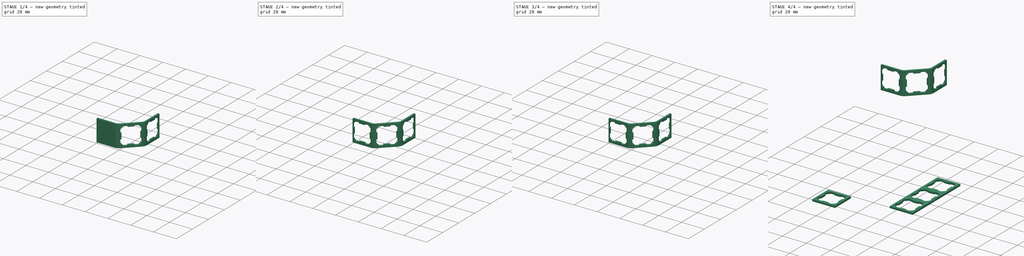
[diagram: build sequence overview — one tinted view per stage of 4, left to right]
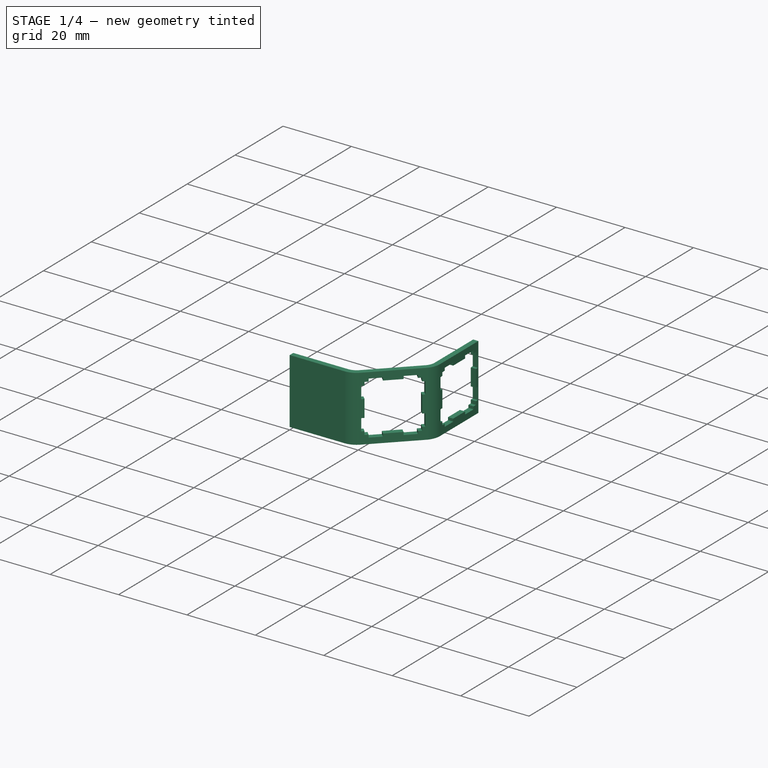
[diagram: stage 1 of 4 — iso view after this stage's code; geometry added in this stage tinted green]
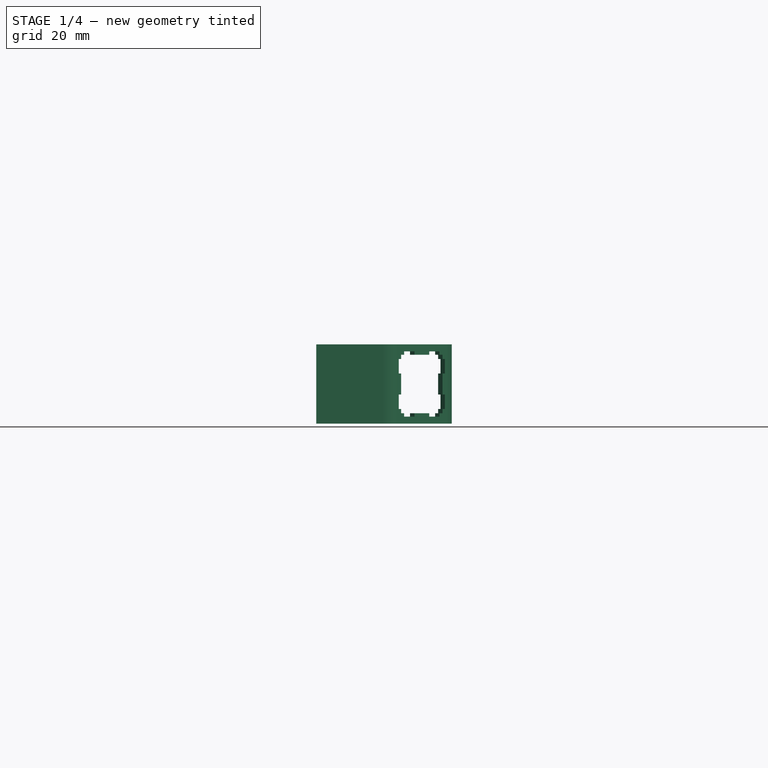
[diagram: stage 1 of 4 — front view after this stage's code; geometry added in this stage tinted green]
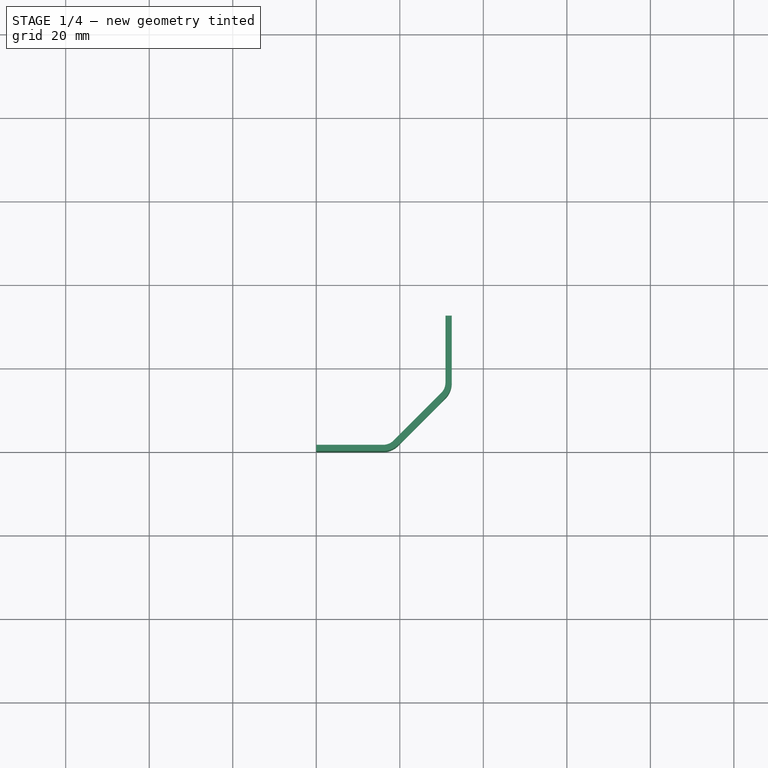
[diagram: stage 1 of 4 — top view after this stage's code; geometry added in this stage tinted green]
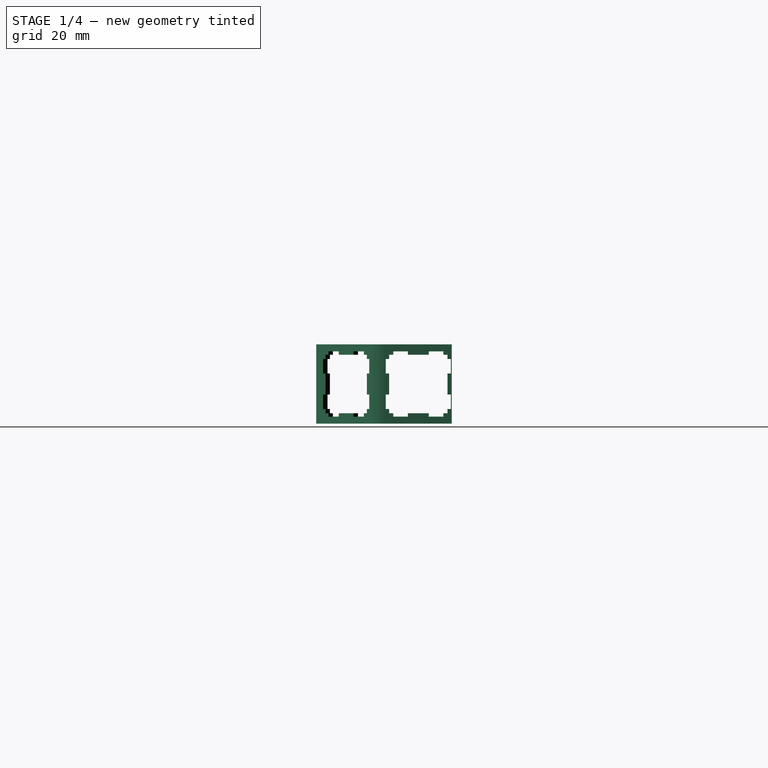
[diagram: stage 1 of 4 — right view after this stage's code; geometry added in this stage tinted green]
FCSTD DOCUMENT
Label: tryboard_4
objects: Part::FeaturePython×6, Sketcher::SketchObject×5, PartDesign::Pocket×4, PartDesign::Pad×1
note: 21 computed .brp shape members not serialized (recipe doc carries the construction recipe); baked Part::Feature solids carry a one-line shape summary decoded from their .brp

FEATURE [Sketcher::SketchObject] Sketch
  sketch-geometry (44):
    g0: LineSegment StartX=0 StartY=0 StartZ=0 EndX=16 EndY=0 EndZ=0
    g1: LineSegment [constr] StartX=16 StartY=0 StartZ=0 EndX=16 EndY=1.5 EndZ=0
    g2: LineSegment StartX=16 StartY=1.5 StartZ=0 EndX=0 EndY=1.5 EndZ=0
    g3: LineSegment StartX=0 StartY=1.5 StartZ=0 EndX=0 EndY=0 EndZ=0
    g4: LineSegment [constr] StartX=16 StartY=0 StartZ=0 EndX=17.5 EndY=0 EndZ=0
    g5: LineSegment [constr] StartX=17.5 StartY=0 StartZ=0 EndX=17.5 EndY=1.5 EndZ=0
    g6: LineSegment [constr] StartX=17.5 StartY=1.5 StartZ=0 EndX=16 EndY=1.5 EndZ=0
    g7: LineSegment [constr] StartX=16 StartY=1.5 StartZ=0 EndX=16 EndY=0 EndZ=0
    g8: LineSegment [constr] StartX=18.5607 StartY=2.56066 StartZ=0 EndX=19.6213 EndY=1.5 EndZ=0
    g9: LineSegment StartX=19.6213 StartY=1.5 StartZ=0 EndX=30.935 EndY=12.8137 EndZ=0
    g10: LineSegment [constr] StartX=30.935 StartY=12.8137 StartZ=0 EndX=29.8744 EndY=13.8744 EndZ=0
    g11: LineSegment StartX=29.8744 StartY=13.8744 StartZ=0 EndX=18.5607 EndY=2.56066 EndZ=0
    g12: LineSegment [constr] StartX=19.6213 StartY=1.5 StartZ=0 EndX=18.5607 EndY=2.56066 EndZ=0
    g13: LineSegment [constr] StartX=18.5607 StartY=2.56066 StartZ=0 EndX=17.5 EndY=1.5 EndZ=0
    g14: LineSegment [constr] StartX=17.5 StartY=1.5 StartZ=0 EndX=18.5607 EndY=0.43934 EndZ=0
    g15: LineSegment [constr] StartX=18.5607 StartY=0.43934 StartZ=0 EndX=19.6213 EndY=1.5 EndZ=0
    g16: LineSegment [constr] StartX=29.8744 StartY=13.8744 StartZ=0 EndX=30.935 EndY=12.8137 EndZ=0
    g17: LineSegment [constr] StartX=30.935 StartY=12.8137 StartZ=0 EndX=31.9957 EndY=13.8744 EndZ=0
    g18: LineSegment [constr] StartX=31.9957 StartY=13.8744 StartZ=0 EndX=30.935 EndY=14.935 EndZ=0
    g19: LineSegment [constr] StartX=30.935 StartY=14.935 StartZ=0 EndX=29.8744 EndY=13.8744 EndZ=0
    g20: LineSegment [constr] StartX=32.435 StartY=16.435 StartZ=0 EndX=30.935 EndY=16.435 EndZ=0
    g21: LineSegment StartX=30.935 StartY=16.435 StartZ=0 EndX=30.935 EndY=32.435 EndZ=0
    g22: LineSegment StartX=30.935 StartY=32.435 StartZ=0 EndX=32.435 EndY=32.435 EndZ=0
    g23: LineSegment StartX=32.435 StartY=32.435 StartZ=0 EndX=32.435 EndY=16.435 EndZ=0
    g24: LineSegment [constr] StartX=32.435 StartY=16.435 StartZ=0 EndX=30.935 EndY=16.435 EndZ=0
    g25: LineSegment [constr] StartX=30.935 StartY=16.435 StartZ=0 EndX=30.935 EndY=14.935 EndZ=0
    g26: LineSegment [constr] StartX=30.935 StartY=14.935 StartZ=0 EndX=32.435 EndY=14.935 EndZ=0
    g27: LineSegment [constr] StartX=32.435 StartY=14.935 StartZ=0 EndX=32.435 EndY=16.435 EndZ=0
    g28: LineSegment [constr] StartX=32.435 StartY=33.935 StartZ=0 EndX=30.935 EndY=33.935 EndZ=0
    g29: LineSegment [constr] StartX=30.935 StartY=33.935 StartZ=0 EndX=30.935 EndY=32.435 EndZ=0
    g30: LineSegment [constr] StartX=30.935 StartY=32.435 StartZ=0 EndX=32.435 EndY=32.435 EndZ=0
    g31: LineSegment [constr] StartX=32.435 StartY=32.435 StartZ=0 EndX=32.435 EndY=33.935 EndZ=0
    g32: LineSegment [constr] StartX=-1.5 StartY=1.5 StartZ=0 EndX=0 EndY=1.5 EndZ=0
    g33: LineSegment [constr] StartX=0 StartY=1.5 StartZ=0 EndX=0 EndY=0 EndZ=0
    g34: LineSegment [constr] StartX=0 StartY=0 StartZ=0 EndX=-1.5 EndY=0 EndZ=0
    g35: LineSegment [constr] StartX=-1.5 StartY=0 StartZ=0 EndX=-1.5 EndY=1.5 EndZ=0
    g36: LineSegment [constr] StartX=16 StartY=1.5 StartZ=0 EndX=16 EndY=5.12132 EndZ=0
    g37: LineSegment [constr] StartX=18.5607 StartY=2.56066 StartZ=0 EndX=16 EndY=5.12132 EndZ=0
    g38: LineSegment [constr] StartX=30.935 StartY=16.435 StartZ=0 EndX=27.3137 EndY=16.435 EndZ=0
    g39: LineSegment [constr] StartX=29.8744 StartY=13.8744 StartZ=0 EndX=27.3137 EndY=16.435 EndZ=0
    g40: ArcOfCircle CenterX=16 CenterY=5.12132 CenterZ=0 NormalX=0 NormalY=0 NormalZ=1 Radius=3.62132 StartAngle=4.71239 EndAngle=5.49779
    g41: ArcOfCircle CenterX=16 CenterY=5.12132 CenterZ=0 NormalX=0 NormalY=0 NormalZ=1 Radius=5.12132 StartAngle=4.71239 EndAngle=5.49779
    g42: ArcOfCircle CenterX=27.3137 CenterY=16.435 CenterZ=0 NormalX=0 NormalY=0 NormalZ=1 Radius=3.62132 StartAngle=5.49779 EndAngle=6.28319
    g43: ArcOfCircle CenterX=27.3137 CenterY=16.435 CenterZ=0 NormalX=0 NormalY=0 NormalZ=1 Radius=5.12132 StartAngle=5.49779 EndAngle=6.28319
  constraints (119):
    c: Coincident(g0,g1)
    c: Coincident(g1,g2)
    c: Coincident(g2,g3)
    c: Coincident(g3,g0)
    c: Horizontal(g0)
    c: Horizontal(g2)
    c: Vertical(g1)
    c: Vertical(g3)
    c: Coincident(g0,g-1)
    c: Distance(g3) = 1.5
    c: Coincident(g4,g5)
    c: Coincident(g5,g6)
    c: Coincident(g6,g7)
    c: Coincident(g7,g4)
    c: Horizontal(g4)
    c: Horizontal(g6)
    c: Vertical(g5)
    c: Vertical(g7)
    c: Coincident(g4,g0)
    c: Equal(g6,g5)
    c: Coincident(g6,g1)
    c: Coincident(g8,g9)
    c: Coincident(g9,g10)
    c: Coincident(g10,g11)
    c: Coincident(g11,g8)
    c: Parallel(g11,g9)
    c: Parallel(g10,g8)
    c: Perpendicular(g11,g8)
    c: Equal(g8,g3)
    c: Distance(g9) = 16
    c: Coincident(g12,g13)
    c: Coincident(g13,g14)
    c: Coincident(g14,g15)
    c: Coincident(g15,g12)
    c: Coincident(g12,g8)
    c: Perpendicular(g15,g14)
    c: Parallel(g13,g15)
    c: Parallel(g12,g14)
    c: Equal(g15,g14)
    c: Coincident(g8,g12)
    c: Coincident(g5,g13)
    c: Angle(g13,g6) = 2.35619
    c: Coincident(g16,g17)
    c: Coincident(g17,g18)
    c: Coincident(g18,g19)
    c: Coincident(g19,g16)
    c: Coincident(g16,g10)
    c: Perpendicular(g18,g19)
    c: Parallel(g17,g19)
    c: Parallel(g18,g16)
    c: Equal(g18,g19)
    c: Coincident(g16,g9)
    c: Coincident(g20,g21)
    c: Coincident(g21,g22)
    c: Coincident(g22,g23)
    c: Coincident(g23,g20)
    c: Horizontal(g20)
    c: Horizontal(g22)
    c: Vertical(g21)
    c: Vertical(g23)
    c: Equal(g21,g9)
    c: Equal(g10,g20)
    c: Coincident(g24,g25)
    c: Coincident(g25,g26)
    c: Coincident(g26,g27)
    c: Coincident(g27,g24)
    c: Horizontal(g24)
    c: Horizontal(g26)
    c: Vertical(g25)
    c: Vertical(g27)
    c: Equal(g25,g26)
    c: Coincident(g24,g20)
    c: Coincident(g24,g20)
    c: Coincident(g28,g29)
    c: Coincident(g29,g30)
    c: Coincident(g30,g31)
    c: Coincident(g31,g28)
    c: Horizontal(g28)
    c: Horizontal(g30)
    c: Vertical(g29)
    c: Vertical(g31)
    c: Equal(g28,g29)
    c: Coincident(g30,g22)
    c: Coincident(g21,g29)
    c: Coincident(g25,g18)
    c: Equal(g2,g11)
    c: Coincident(g32,g33)
    c: Coincident(g33,g34)
    c: Coincident(g34,g35)
    c: Coincident(g35,g32)
    c: Horizontal(g32)
    c: Horizontal(g34)
    c: Vertical(g33)
    c: Vertical(g35)
    c: Equal(g35,g32)
    c: Coincident(g32,g2)
    c: Coincident(g33,g-1)
    c: Coincident(g36,g1)
    c: Vertical(g36)
    c: Coincident(g37,g8)
    c: Coincident(g37,g36)
    c: Perpendicular(g37,g11)
    c: Coincident(g38,g20)
    c: Horizontal(g38)
    c: Coincident(g39,g10)
    c: Coincident(g39,g38)
    c: Perpendicular(g39,g11)
    c: Coincident(g40,g36)
    c: Coincident(g40,g1)
    c: Coincident(g40,g8)
    c: Coincident(g41,g36)
    c: Coincident(g41,g0)
    c: Coincident(g41,g8)
    c: Coincident(g42,g38)
    c: Coincident(g42,g10)
    c: Coincident(g42,g20)
    c: Coincident(g43,g38)
    c: Coincident(g43,g9)
    c: Coincident(g43,g20)
FEATURE [PartDesign::Pad] Pad
  Length = 19
  Length2 = 100
  Sketch = -> Sketch
  Type = 0
FEATURE [Sketcher::SketchObject] Sketch004
  ExternalGeometry = -> [Pad]
  Placement = pos=(8.00001,-8,0) rot=(-0.281085,0.678598,0.678598;3.68962rad)
  Support = -> Pad [Face8]
  sketch-geometry (62):
    g0: LineSegment StartX=-28.935 StartY=17.3 StartZ=0 EndX=-25.435 EndY=17.3 EndZ=0
    g1: LineSegment [constr] StartX=-25.435 StartY=17.3 StartZ=0 EndX=-25.435 EndY=1.7 EndZ=0
    g2: LineSegment StartX=-25.435 StartY=1.7 StartZ=0 EndX=-28.935 EndY=1.7 EndZ=0
    g3: LineSegment [constr] StartX=-28.935 StartY=1.7 StartZ=0 EndX=-28.935 EndY=17.3 EndZ=0
    g4: LineSegment StartX=-20.435 StartY=17.3 StartZ=0 EndX=-16.935 EndY=17.3 EndZ=0
    g5: LineSegment [constr] StartX=-16.935 StartY=17.3 StartZ=0 EndX=-16.935 EndY=1.7 EndZ=0
    g6: LineSegment StartX=-16.935 StartY=1.7 StartZ=0 EndX=-20.435 EndY=1.7 EndZ=0
    g7: LineSegment [constr] StartX=-20.435 StartY=1.7 StartZ=0 EndX=-20.435 EndY=17.3 EndZ=0
    g8: LineSegment [constr] StartX=-30.735 StartY=15.5 StartZ=0 EndX=-15.135 EndY=15.5 EndZ=0
    g9: LineSegment StartX=-15.135 StartY=15.5 StartZ=0 EndX=-15.135 EndY=12 EndZ=0
    g10: LineSegment [constr] StartX=-15.135 StartY=12 StartZ=0 EndX=-30.735 EndY=12 EndZ=0
    g11: LineSegment StartX=-30.735 StartY=12 StartZ=0 EndX=-30.735 EndY=15.5 EndZ=0
    g12: LineSegment [constr] StartX=-30.735 StartY=7 StartZ=0 EndX=-15.135 EndY=7 EndZ=0
    g13: LineSegment StartX=-15.135 StartY=7 StartZ=0 EndX=-15.135 EndY=3.5 EndZ=0
    g14: LineSegment [constr] StartX=-15.135 StartY=3.5 StartZ=0 EndX=-30.735 EndY=3.5 EndZ=0
    g15: LineSegment StartX=-30.735 StartY=3.5 StartZ=0 EndX=-30.735 EndY=7 EndZ=0
    g16: LineSegment [constr] StartX=-25.435 StartY=1.7 StartZ=0 EndX=-20.435 EndY=1.7 EndZ=0
    g17: LineSegment [constr] StartX=-30.735 StartY=12 StartZ=0 EndX=-30.735 EndY=7 EndZ=0
    g18: LineSegment [constr] StartX=-30.935 StartY=19 StartZ=0 EndX=-14.935 EndY=0 EndZ=0
    g19: LineSegment [constr] StartX=-14.935 StartY=19 StartZ=0 EndX=-30.935 EndY=0 EndZ=0
    g20: GeomPoint [constr] X=-25.435 Y=12 Z=0
    g21: GeomPoint [constr] X=-20.435 Y=12 Z=0
    g22: GeomPoint [constr] X=-25.435 Y=7 Z=0
    g23: GeomPoint [constr] X=-20.435 Y=7 Z=0
    g24: LineSegment [constr] StartX=-30.735 StartY=15.5 StartZ=0 EndX=-28.935 EndY=17.3 EndZ=0
    g25: LineSegment [constr] StartX=-30.735 StartY=3.5 StartZ=0 EndX=-28.935 EndY=1.7 EndZ=0
    g26: LineSegment [constr] StartX=-22.935 StartY=9.5 StartZ=0 EndX=-22.935 EndY=15.5 EndZ=0
    g27: LineSegment [constr] StartX=-22.935 StartY=9.5 StartZ=0 EndX=-16.935 EndY=9.5 EndZ=0
    g28: LineSegment StartX=-30.735 StartY=15.5 StartZ=0 EndX=-29.935 EndY=15.5 EndZ=0
    g29: LineSegment StartX=-30.735 StartY=12 StartZ=0 EndX=-29.935 EndY=12 EndZ=0
    g30: LineSegment StartX=-15.935 StartY=15.5 StartZ=0 EndX=-15.135 EndY=15.5 EndZ=0
    g31: LineSegment StartX=-15.135 StartY=12 StartZ=0 EndX=-15.935 EndY=12 EndZ=0
    g32: LineSegment StartX=-15.135 StartY=7 StartZ=0 EndX=-15.935 EndY=7 EndZ=0
    g33: LineSegment StartX=-15.135 StartY=3.5 StartZ=0 EndX=-15.935 EndY=3.5 EndZ=0
    g34: LineSegment StartX=-15.935 StartY=7 StartZ=0 EndX=-15.935 EndY=12 EndZ=0
    g35: LineSegment StartX=-30.735 StartY=7 StartZ=0 EndX=-29.935 EndY=7 EndZ=0
    g36: LineSegment StartX=-29.935 StartY=12 StartZ=0 EndX=-29.935 EndY=7 EndZ=0
    g37: LineSegment StartX=-28.935 StartY=16.5 StartZ=0 EndX=-28.935 EndY=17.3 EndZ=0
    g38: LineSegment StartX=-30.735 StartY=3.5 StartZ=0 EndX=-29.935 EndY=3.5 EndZ=0
    g39: LineSegment StartX=-28.935 StartY=2.5 StartZ=0 EndX=-28.935 EndY=1.7 EndZ=0
    g40: LineSegment StartX=-25.435 StartY=1.7 StartZ=0 EndX=-25.435 EndY=2.5 EndZ=0
    g41: LineSegment StartX=-25.435 StartY=2.5 StartZ=0 EndX=-20.435 EndY=2.5 EndZ=0
    g42: LineSegment StartX=-20.435 StartY=2.5 StartZ=0 EndX=-20.435 EndY=1.7 EndZ=0
    g43: LineSegment StartX=-25.435 StartY=17.3 StartZ=0 EndX=-25.435 EndY=16.5 EndZ=0
    g44: LineSegment StartX=-20.435 StartY=17.3 StartZ=0 EndX=-20.435 EndY=16.5 EndZ=0
    g45: LineSegment StartX=-25.435 StartY=16.5 StartZ=0 EndX=-20.435 EndY=16.5 EndZ=0
    g46: LineSegment StartX=-16.935 StartY=17.3 StartZ=0 EndX=-16.935 EndY=16.5 EndZ=0
    g47: LineSegment StartX=-16.935 StartY=2.5 StartZ=0 EndX=-16.935 EndY=1.7 EndZ=0
    g48: LineSegment [constr] StartX=-29.935 StartY=16.5 StartZ=0 EndX=-15.935 EndY=16.5 EndZ=0
    g49: LineSegment [constr] StartX=-15.935 StartY=16.5 StartZ=0 EndX=-15.935 EndY=2.5 EndZ=0
    g50: LineSegment [constr] StartX=-15.935 StartY=2.5 StartZ=0 EndX=-29.935 EndY=2.5 EndZ=0
    g51: LineSegment [constr] StartX=-29.935 StartY=2.5 StartZ=0 EndX=-29.935 EndY=16.5 EndZ=0
    g52: LineSegment [constr] StartX=-16.935 StartY=15.5 StartZ=0 EndX=-15.935 EndY=16.5 EndZ=0
    g53: LineSegment [constr] StartX=-16.935 StartY=3.5 StartZ=0 EndX=-15.935 EndY=2.5 EndZ=0
    g54: LineSegment StartX=-15.935 StartY=15.5 StartZ=0 EndX=-15.935 EndY=16.5 EndZ=0
    g55: LineSegment StartX=-16.935 StartY=16.5 StartZ=0 EndX=-15.935 EndY=16.5 EndZ=0
    g56: LineSegment StartX=-29.935 StartY=16.5 StartZ=0 EndX=-28.935 EndY=16.5 EndZ=0
    g57: LineSegment StartX=-29.935 StartY=16.5 StartZ=0 EndX=-29.935 EndY=15.5 EndZ=0
    g58: LineSegment StartX=-29.935 StartY=3.5 StartZ=0 EndX=-29.935 EndY=2.5 EndZ=0
    g59: LineSegment StartX=-29.935 StartY=2.5 StartZ=0 EndX=-28.935 EndY=2.5 EndZ=0
    g60: LineSegment StartX=-15.935 StartY=3.5 StartZ=0 EndX=-15.935 EndY=2.5 EndZ=0
    g61: LineSegment StartX=-15.935 StartY=2.5 StartZ=0 EndX=-16.935 EndY=2.5 EndZ=0
  constraints (165):
    c: Coincident(g0,g1)
    c: Coincident(g1,g2)
    c: Coincident(g2,g3)
    c: Coincident(g3,g0)
    c: Horizontal(g0)
    c: Horizontal(g2)
    c: Vertical(g1)
    c: Vertical(g3)
    c: Coincident(g4,g5)
    c: Coincident(g5,g6)
    c: Coincident(g6,g7)
    c: Coincident(g7,g4)
    c: Horizontal(g4)
    c: Horizontal(g6)
    c: Vertical(g5)
    c: Vertical(g7)
    c: Coincident(g8,g9)
    c: Coincident(g9,g10)
    c: Coincident(g10,g11)
    c: Coincident(g11,g8)
    c: Horizontal(g8)
    c: Horizontal(g10)
    c: Vertical(g9)
    c: Vertical(g11)
    c: Coincident(g12,g13)
    c: Coincident(g13,g14)
    c: Coincident(g14,g15)
    c: Coincident(g15,g12)
    c: Horizontal(g12)
    c: Horizontal(g14)
    c: Vertical(g13)
    c: Vertical(g15)
    c: Equal(g10,g12)
    c: Equal(g12,g1)
    c: Equal(g1,g7)
    c: Distance(g5) = 15.6
    c: Distance(g1,g6) = 5
    c: Equal(g6,g13)
    c: Equal(g13,g9)
    c: Equal(g9,g2)
    c: Distance(g6) = 3.5
    c: Coincident(g16,g1)
    c: Coincident(g16,g6)
    c: Horizontal(g16)
    c: Coincident(g17,g10)
    c: Coincident(g17,g12)
    c: Vertical(g17)
    c: Coincident(g-4,g18)
    c: Coincident(g19,g-4)
    c: Coincident(g19,g-3)
    c: Coincident(g18,g-3)
    c: PointOnObject(g20,g1)
    c: PointOnObject(g20,g10)
    c: PointOnObject(g21,g7)
    c: PointOnObject(g21,g10)
    c: PointOnObject(g22,g12)
    c: PointOnObject(g22,g1)
    c: PointOnObject(g23,g12)
    c: PointOnObject(g23,g7)
    c: Equal(g17,g16)
    c: Coincident(g24,g8)
    c: Coincident(g24,g0)
    c: Angle(g8,g24) = 0.785398
    c: Coincident(g25,g14)
    c: Coincident(g25,g2)
    c: Angle(g25,g14) = 0.785398
    c: PointOnObject(g26,g18)
    c: Vertical(g26)
    c: PointOnObject(g26,g19)
    c: Symmetric(g20,g21,g26)
    c: Coincident(g27,g26)
    c: Horizontal(g27)
    c: Symmetric(g21,g23,g27)
    c: PointOnObject(g26,g8)
    c: Coincident(g28,g8)
    c: Coincident(g29,g10)
    c: Coincident(g30,g8)
    c: Coincident(g31,g9)
    c: Coincident(g32,g12)
    c: Coincident(g33,g13)
    c: Coincident(g35,g12)
    c: Coincident(g37,g0)
    c: Coincident(g38,g14)
    c: Coincident(g39,g2)
    c: Coincident(g40,g1)
    c: Coincident(g42,g6)
    c: Coincident(g43,g0)
    c: Coincident(g44,g4)
    c: Coincident(g46,g4)
    c: Coincident(g47,g5)
    c: Coincident(g48,g49)
    c: Coincident(g49,g50)
    c: Coincident(g50,g51)
    c: Coincident(g51,g48)
    c: Horizontal(g48)
    c: Horizontal(g50)
    c: Vertical(g49)
    c: Vertical(g51)
    c: Equal(g49,g50)
    c: Distance(g51) = 14
    c: Coincident(g52,g48)
    c: Coincident(g53,g49)
    c: Angle(g8,g52) = 0.785398
    c: Angle(g53,g14) = 0.785398
    c: PointOnObject(g28,g51)
    c: Horizontal(g28)
    c: PointOnObject(g37,g48)
    c: Vertical(g37)
    c: Vertical(g43)
    c: PointOnObject(g44,g48)
    c: Vertical(g44)
    c: Coincident(g45,g43)
    c: Coincident(g45,g44)
    c: PointOnObject(g43,g48)
    c: PointOnObject(g52,g8)
    c: PointOnObject(g52,g5)
    c: PointOnObject(g53,g5)
    c: PointOnObject(g53,g14)
    c: PointOnObject(g33,g49)
    c: Horizontal(g33)
    c: PointOnObject(g47,g50)
    c: Vertical(g47)
    c: PointOnObject(g42,g50)
    c: Vertical(g42)
    c: PointOnObject(g40,g50)
    c: Vertical(g40)
    c: Coincident(g41,g42)
    c: Coincident(g41,g40)
    c: PointOnObject(g39,g50)
    c: Vertical(g39)
    c: PointOnObject(g38,g51)
    c: Horizontal(g38)
    c: PointOnObject(g35,g51)
    c: Horizontal(g35)
    c: PointOnObject(g29,g51)
    c: Horizontal(g29)
    c: Coincident(g36,g29)
    c: Coincident(g36,g35)
    c: PointOnObject(g32,g49)
    c: Horizontal(g32)
    c: PointOnObject(g31,g49)
    c: Horizontal(g31)
    c: Coincident(g34,g31)
    c: Coincident(g34,g32)
    c: PointOnObject(g46,g48)
    c: Vertical(g46)
    c: PointOnObject(g30,g49)
    c: Horizontal(g30)
    c: Coincident(g54,g30)
    c: Coincident(g54,g48)
    c: Coincident(g55,g46)
    c: Coincident(g55,g48)
    c: Coincident(g56,g48)
    c: Coincident(g56,g37)
    c: Coincident(g57,g48)
    c: Coincident(g57,g28)
    c: Coincident(g58,g38)
    c: Coincident(g58,g50)
    c: Coincident(g59,g50)
    c: Coincident(g59,g39)
    c: Coincident(g60,g33)
    c: Coincident(g60,g49)
    c: Coincident(g61,g47)
    c: Coincident(g61,g49)
    c: PointOnObject(g27,g5)
FEATURE [PartDesign::Pocket] Pocket
  Length = 5
  Sketch = -> Sketch004
  Type = 1
FEATURE [Sketcher::SketchObject] Sketch004001
  ExternalGeometry = -> [Pocket]
  Placement = pos=(30.935,0,0) rot=(0.57735,-0.57735,-0.57735;2.0944rad)
  Support = -> Pocket [Face50]
  sketch-geometry (62):
    g0: LineSegment StartX=-30.435 StartY=17.3 StartZ=0 EndX=-26.935 EndY=17.3 EndZ=0
    g1: LineSegment [constr] StartX=-26.935 StartY=17.3 StartZ=0 EndX=-26.935 EndY=1.7 EndZ=0
    g2: LineSegment StartX=-26.935 StartY=1.7 StartZ=0 EndX=-30.435 EndY=1.7 EndZ=0
    g3: LineSegment [constr] StartX=-30.435 StartY=1.7 StartZ=0 EndX=-30.435 EndY=17.3 EndZ=0
    g4: LineSegment StartX=-21.935 StartY=17.3 StartZ=0 EndX=-18.435 EndY=17.3 EndZ=0
    g5: LineSegment [constr] StartX=-18.435 StartY=17.3 StartZ=0 EndX=-18.435 EndY=1.7 EndZ=0
    g6: LineSegment StartX=-18.435 StartY=1.7 StartZ=0 EndX=-21.935 EndY=1.7 EndZ=0
    g7: LineSegment [constr] StartX=-21.935 StartY=1.7 StartZ=0 EndX=-21.935 EndY=17.3 EndZ=0
    g8: LineSegment [constr] StartX=-32.235 StartY=15.5 StartZ=0 EndX=-16.635 EndY=15.5 EndZ=0
    g9: LineSegment StartX=-16.635 StartY=15.5 StartZ=0 EndX=-16.635 EndY=12 EndZ=0
    g10: LineSegment [constr] StartX=-16.635 StartY=12 StartZ=0 EndX=-32.235 EndY=12 EndZ=0
    g11: LineSegment StartX=-32.235 StartY=12 StartZ=0 EndX=-32.235 EndY=15.5 EndZ=0
    g12: LineSegment [constr] StartX=-32.235 StartY=7 StartZ=0 EndX=-16.635 EndY=7 EndZ=0
    g13: LineSegment StartX=-16.635 StartY=7 StartZ=0 EndX=-16.635 EndY=3.5 EndZ=0
    g14: LineSegment [constr] StartX=-16.635 StartY=3.5 StartZ=0 EndX=-32.235 EndY=3.5 EndZ=0
    g15: LineSegment StartX=-32.235 StartY=3.5 StartZ=0 EndX=-32.235 EndY=7 EndZ=0
    g16: LineSegment [constr] StartX=-26.935 StartY=1.7 StartZ=0 EndX=-21.935 EndY=1.7 EndZ=0
    g17: LineSegment [constr] StartX=-32.235 StartY=12 StartZ=0 EndX=-32.235 EndY=7 EndZ=0
    g18: LineSegment [constr] StartX=-32.435 StartY=19 StartZ=0 EndX=-16.435 EndY=0 EndZ=0
    g19: LineSegment [constr] StartX=-16.435 StartY=19 StartZ=0 EndX=-32.435 EndY=0 EndZ=0
    g20: GeomPoint [constr] X=-26.935 Y=12 Z=0
    g21: GeomPoint [constr] X=-21.935 Y=12 Z=0
    g22: GeomPoint [constr] X=-26.935 Y=7 Z=0
    g23: GeomPoint [constr] X=-21.935 Y=7 Z=0
    g24: LineSegment [constr] StartX=-32.235 StartY=15.5 StartZ=0 EndX=-30.435 EndY=17.3 EndZ=0
    g25: LineSegment [constr] StartX=-32.235 StartY=3.5 StartZ=0 EndX=-30.435 EndY=1.7 EndZ=0
    g26: LineSegment [constr] StartX=-24.435 StartY=9.5 StartZ=0 EndX=-24.435 EndY=15.5 EndZ=0
    g27: LineSegment [constr] StartX=-24.435 StartY=9.5 StartZ=0 EndX=-18.435 EndY=9.5 EndZ=0
    g28: LineSegment StartX=-32.235 StartY=15.5 StartZ=0 EndX=-31.435 EndY=15.5 EndZ=0
    g29: LineSegment StartX=-32.235 StartY=12 StartZ=0 EndX=-31.435 EndY=12 EndZ=0
    g30: LineSegment StartX=-17.435 StartY=15.5 StartZ=0 EndX=-16.635 EndY=15.5 EndZ=0
    g31: LineSegment StartX=-16.635 StartY=12 StartZ=0 EndX=-17.435 EndY=12 EndZ=0
    g32: LineSegment StartX=-16.635 StartY=7 StartZ=0 EndX=-17.435 EndY=7 EndZ=0
    g33: LineSegment StartX=-16.635 StartY=3.5 StartZ=0 EndX=-17.435 EndY=3.5 EndZ=0
    g34: LineSegment StartX=-17.435 StartY=7 StartZ=0 EndX=-17.435 EndY=12 EndZ=0
    g35: LineSegment StartX=-32.235 StartY=7 StartZ=0 EndX=-31.435 EndY=7 EndZ=0
    g36: LineSegment StartX=-31.435 StartY=12 StartZ=0 EndX=-31.435 EndY=7 EndZ=0
    g37: LineSegment StartX=-30.435 StartY=16.5 StartZ=0 EndX=-30.435 EndY=17.3 EndZ=0
    g38: LineSegment StartX=-32.235 StartY=3.5 StartZ=0 EndX=-31.435 EndY=3.5 EndZ=0
    g39: LineSegment StartX=-30.435 StartY=2.5 StartZ=0 EndX=-30.435 EndY=1.7 EndZ=0
    g40: LineSegment StartX=-26.935 StartY=1.7 StartZ=0 EndX=-26.935 EndY=2.5 EndZ=0
    g41: LineSegment StartX=-26.935 StartY=2.5 StartZ=0 EndX=-21.935 EndY=2.5 EndZ=0
    g42: LineSegment StartX=-21.935 StartY=2.5 StartZ=0 EndX=-21.935 EndY=1.7 EndZ=0
    g43: LineSegment StartX=-26.935 StartY=17.3 StartZ=0 EndX=-26.935 EndY=16.5 EndZ=0
    g44: LineSegment StartX=-21.935 StartY=17.3 StartZ=0 EndX=-21.935 EndY=16.5 EndZ=0
    g45: LineSegment StartX=-26.935 StartY=16.5 StartZ=0 EndX=-21.935 EndY=16.5 EndZ=0
    g46: LineSegment StartX=-18.435 StartY=17.3 StartZ=0 EndX=-18.435 EndY=16.5 EndZ=0
    g47: LineSegment StartX=-18.435 StartY=2.5 StartZ=0 EndX=-18.435 EndY=1.7 EndZ=0
    g48: LineSegment [constr] StartX=-31.435 StartY=16.5 StartZ=0 EndX=-17.435 EndY=16.5 EndZ=0
    g49: LineSegment [constr] StartX=-17.435 StartY=16.5 StartZ=0 EndX=-17.435 EndY=2.5 EndZ=0
    g50: LineSegment [constr] StartX=-17.435 StartY=2.5 StartZ=0 EndX=-31.435 EndY=2.5 EndZ=0
    g51: LineSegment [constr] StartX=-31.435 StartY=2.5 StartZ=0 EndX=-31.435 EndY=16.5 EndZ=0
    g52: LineSegment [constr] StartX=-18.435 StartY=15.5 StartZ=0 EndX=-17.435 EndY=16.5 EndZ=0
    g53: LineSegment [constr] StartX=-18.435 StartY=3.5 StartZ=0 EndX=-17.435 EndY=2.5 EndZ=0
    g54: LineSegment StartX=-17.435 StartY=15.5 StartZ=0 EndX=-17.435 EndY=16.5 EndZ=0
    g55: LineSegment StartX=-18.435 StartY=16.5 StartZ=0 EndX=-17.435 EndY=16.5 EndZ=0
    g56: LineSegment StartX=-31.435 StartY=16.5 StartZ=0 EndX=-30.435 EndY=16.5 EndZ=0
    g57: LineSegment StartX=-31.435 StartY=16.5 StartZ=0 EndX=-31.435 EndY=15.5 EndZ=0
    g58: LineSegment StartX=-31.435 StartY=3.5 StartZ=0 EndX=-31.435 EndY=2.5 EndZ=0
    g59: LineSegment StartX=-31.435 StartY=2.5 StartZ=0 EndX=-30.435 EndY=2.5 EndZ=0
    g60: LineSegment StartX=-17.435 StartY=3.5 StartZ=0 EndX=-17.435 EndY=2.5 EndZ=0
    g61: LineSegment StartX=-17.435 StartY=2.5 StartZ=0 EndX=-18.435 EndY=2.5 EndZ=0
  constraints (165):
    c: Coincident(g0,g1)
    c: Coincident(g1,g2)
    c: Coincident(g2,g3)
    c: Coincident(g3,g0)
    c: Horizontal(g0)
    c: Horizontal(g2)
    c: Vertical(g1)
    c: Vertical(g3)
    c: Coincident(g4,g5)
    c: Coincident(g5,g6)
    c: Coincident(g6,g7)
    c: Coincident(g7,g4)
    c: Horizontal(g4)
    c: Horizontal(g6)
    c: Vertical(g5)
    c: Vertical(g7)
    c: Coincident(g8,g9)
    c: Coincident(g9,g10)
    c: Coincident(g10,g11)
    c: Coincident(g11,g8)
    c: Horizontal(g8)
    c: Horizontal(g10)
    c: Vertical(g9)
    c: Vertical(g11)
    c: Coincident(g12,g13)
    c: Coincident(g13,g14)
    c: Coincident(g14,g15)
    c: Coincident(g15,g12)
    c: Horizontal(g12)
    c: Horizontal(g14)
    c: Vertical(g13)
    c: Vertical(g15)
    c: Equal(g10,g12)
    c: Equal(g12,g1)
    c: Equal(g1,g7)
    c: Distance(g5) = 15.6
    c: Distance(g1,g6) = 5
    c: Equal(g6,g13)
    c: Equal(g13,g9)
    c: Equal(g9,g2)
    c: Distance(g6) = 3.5
    c: Coincident(g16,g1)
    c: Coincident(g16,g6)
    c: Horizontal(g16)
    c: Coincident(g17,g10)
    c: Coincident(g17,g12)
    c: Vertical(g17)
    c: PointOnObject(g20,g1)
    c: PointOnObject(g20,g10)
    c: PointOnObject(g21,g7)
    c: PointOnObject(g21,g10)
    c: PointOnObject(g22,g12)
    c: PointOnObject(g22,g1)
    c: PointOnObject(g23,g12)
    c: PointOnObject(g23,g7)
    c: Equal(g17,g16)
    c: Coincident(g24,g8)
    c: Coincident(g24,g0)
    c: Angle(g8,g24) = 0.785398
    c: Coincident(g25,g14)
    c: Coincident(g25,g2)
    c: Angle(g25,g14) = 0.785398
    c: PointOnObject(g26,g18)
    c: Vertical(g26)
    c: PointOnObject(g26,g19)
    c: Symmetric(g20,g21,g26)
    c: Coincident(g27,g26)
    c: Horizontal(g27)
    c: Symmetric(g21,g23,g27)
    c: PointOnObject(g26,g8)
    c: Coincident(g28,g8)
    c: Coincident(g29,g10)
    c: Coincident(g30,g8)
    c: Coincident(g31,g9)
    c: Coincident(g32,g12)
    c: Coincident(g33,g13)
    c: Coincident(g35,g12)
    c: Coincident(g37,g0)
    c: Coincident(g38,g14)
    c: Coincident(g39,g2)
    c: Coincident(g40,g1)
    c: Coincident(g42,g6)
    c: Coincident(g43,g0)
    c: Coincident(g44,g4)
    c: Coincident(g46,g4)
    c: Coincident(g47,g5)
    c: Coincident(g48,g49)
    c: Coincident(g49,g50)
    c: Coincident(g50,g51)
    c: Coincident(g51,g48)
    c: Horizontal(g48)
    c: Horizontal(g50)
    c: Vertical(g49)
    c: Vertical(g51)
    c: Equal(g49,g50)
    c: Distance(g51) = 14
    c: Coincident(g52,g48)
    c: Coincident(g53,g49)
    c: Angle(g8,g52) = 0.785398
    c: Angle(g53,g14) = 0.785398
    c: PointOnObject(g28,g51)
    c: Horizontal(g28)
    c: PointOnObject(g37,g48)
    c: Vertical(g37)
    c: Vertical(g43)
    c: PointOnObject(g44,g48)
    c: Vertical(g44)
    c: Coincident(g45,g43)
    c: Coincident(g45,g44)
    c: PointOnObject(g43,g48)
    c: PointOnObject(g52,g8)
    c: PointOnObject(g52,g5)
    c: PointOnObject(g53,g5)
    c: PointOnObject(g53,g14)
    c: PointOnObject(g33,g49)
    c: Horizontal(g33)
    c: PointOnObject(g47,g50)
    c: Vertical(g47)
    c: PointOnObject(g42,g50)
    c: Vertical(g42)
    c: PointOnObject(g40,g50)
    c: Vertical(g40)
    c: Coincident(g41,g42)
    c: Coincident(g41,g40)
    c: PointOnObject(g39,g50)
    c: Vertical(g39)
    c: PointOnObject(g38,g51)
    c: Horizontal(g38)
    c: PointOnObject(g35,g51)
    c: Horizontal(g35)
    c: PointOnObject(g29,g51)
    c: Horizontal(g29)
    c: Coincident(g36,g29)
    c: Coincident(g36,g35)
    c: PointOnObject(g32,g49)
    c: Horizontal(g32)
    c: PointOnObject(g31,g49)
    c: Horizontal(g31)
    c: Coincident(g34,g31)
    c: Coincident(g34,g32)
    c: PointOnObject(g46,g48)
    c: Vertical(g46)
    c: PointOnObject(g30,g49)
    c: Horizontal(g30)
    c: Coincident(g54,g30)
    c: Coincident(g54,g48)
    c: Coincident(g55,g46)
    c: Coincident(g55,g48)
    c: Coincident(g56,g48)
    c: Coincident(g56,g37)
    c: Coincident(g57,g48)
    c: Coincident(g57,g28)
    c: Coincident(g58,g38)
    c: Coincident(g58,g50)
    c: Coincident(g59,g50)
    c: Coincident(g59,g39)
    c: Coincident(g60,g33)
    c: Coincident(g60,g49)
    c: Coincident(g61,g47)
    c: Coincident(g61,g49)
    c: PointOnObject(g27,g5)
    c: Coincident(g-4,g18)
    c: Coincident(g-4,g19)
    c: Coincident(g-3,g19)
    c: Coincident(g18,g-3)
FEATURE [PartDesign::Pocket] Pocket002
  Length = 5
  Sketch = -> Sketch004001
  Type = 1
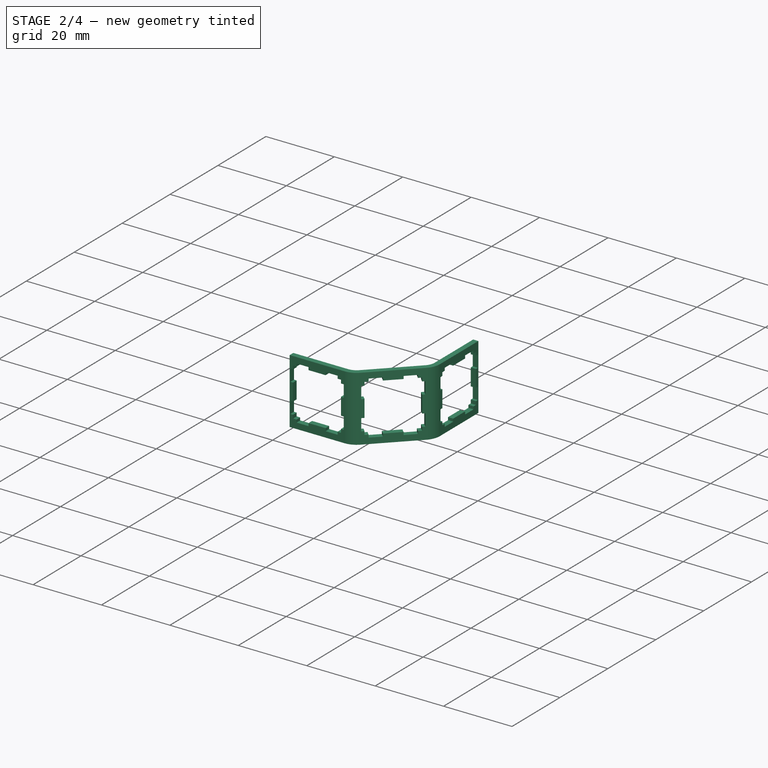
[diagram: stage 2 of 4 — iso view after this stage's code; geometry added in this stage tinted green]
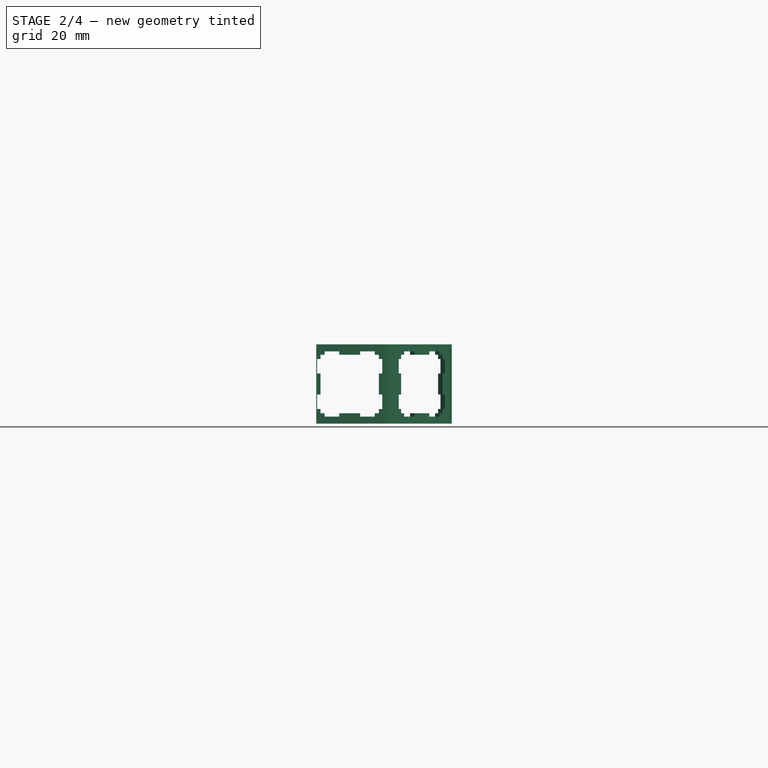
[diagram: stage 2 of 4 — front view after this stage's code; geometry added in this stage tinted green]
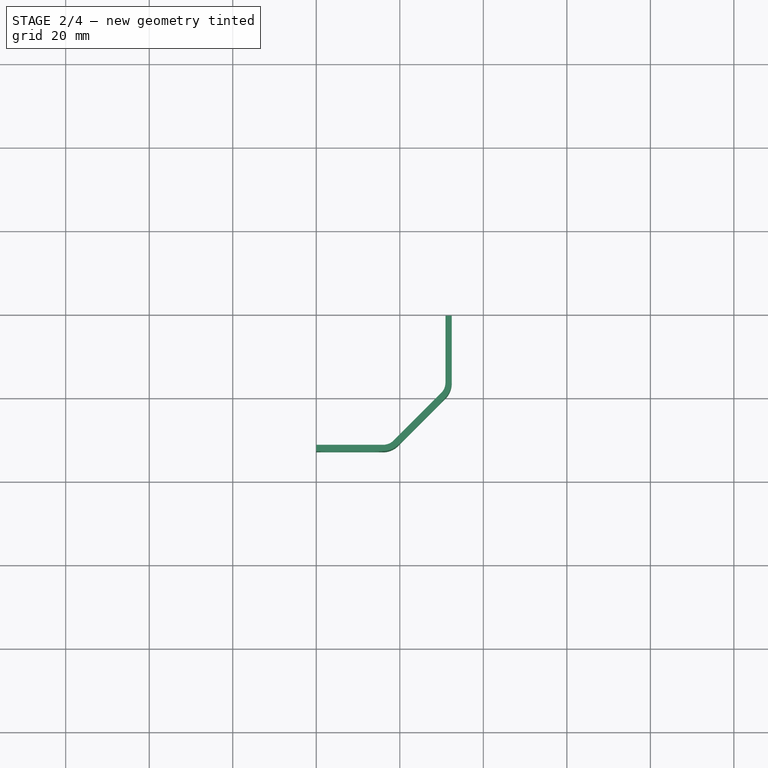
[diagram: stage 2 of 4 — top view after this stage's code; geometry added in this stage tinted green]
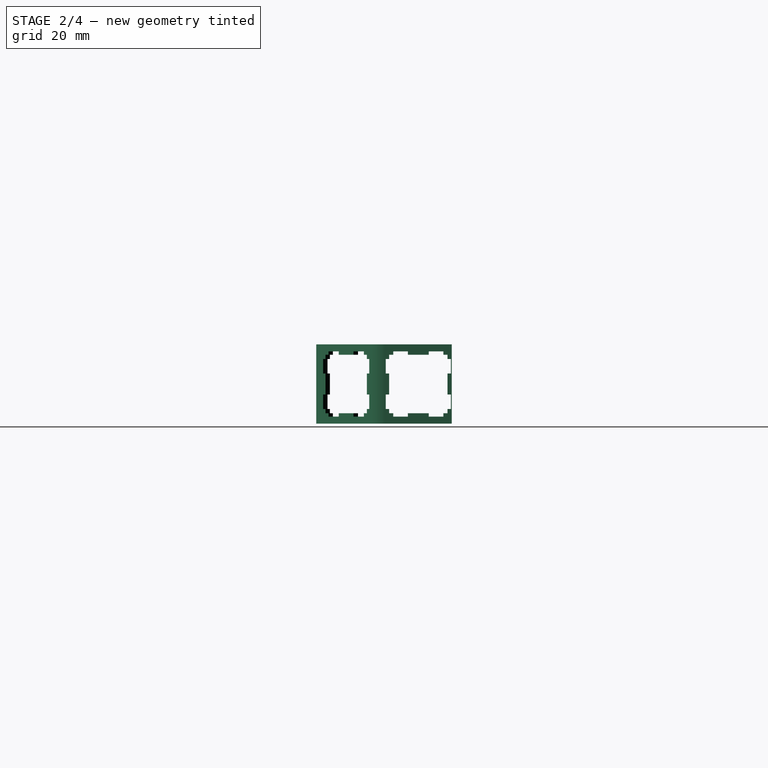
[diagram: stage 2 of 4 — right view after this stage's code; geometry added in this stage tinted green]
FEATURE [Sketcher::SketchObject] Sketch004001001
  ExternalGeometry = -> [Pocket002]
  Placement = pos=(0,1.5,0) rot=(0,0.707107,0.707107;3.14159rad)
  Support = -> Pocket002 [Face82]
  sketch-geometry (62):
    g0: LineSegment StartX=-14 StartY=17.3 StartZ=0 EndX=-10.5 EndY=17.3 EndZ=0
    g1: LineSegment [constr] StartX=-10.5 StartY=17.3 StartZ=0 EndX=-10.5 EndY=1.7 EndZ=0
    g2: LineSegment StartX=-10.5 StartY=1.7 StartZ=0 EndX=-14 EndY=1.7 EndZ=0
    g3: LineSegment [constr] StartX=-14 StartY=1.7 StartZ=0 EndX=-14 EndY=17.3 EndZ=0
    g4: LineSegment StartX=-5.5 StartY=17.3 StartZ=0 EndX=-2 EndY=17.3 EndZ=0
    g5: LineSegment [constr] StartX=-2 StartY=17.3 StartZ=0 EndX=-2 EndY=1.7 EndZ=0
    g6: LineSegment StartX=-2 StartY=1.7 StartZ=0 EndX=-5.5 EndY=1.7 EndZ=0
    g7: LineSegment [constr] StartX=-5.5 StartY=1.7 StartZ=0 EndX=-5.5 EndY=17.3 EndZ=0
    g8: LineSegment [constr] StartX=-15.8 StartY=15.5 StartZ=0 EndX=-0.200001 EndY=15.5 EndZ=0
    g9: LineSegment StartX=-0.200001 StartY=15.5 StartZ=0 EndX=-0.200001 EndY=12 EndZ=0
    g10: LineSegment [constr] StartX=-0.200001 StartY=12 StartZ=0 EndX=-15.8 EndY=12 EndZ=0
    g11: LineSegment StartX=-15.8 StartY=12 StartZ=0 EndX=-15.8 EndY=15.5 EndZ=0
    g12: LineSegment [constr] StartX=-15.8 StartY=7 StartZ=0 EndX=-0.200001 EndY=7 EndZ=0
    g13: LineSegment StartX=-0.200001 StartY=7 StartZ=0 EndX=-0.200001 EndY=3.5 EndZ=0
    g14: LineSegment [constr] StartX=-0.200001 StartY=3.5 StartZ=0 EndX=-15.8 EndY=3.5 EndZ=0
    g15: LineSegment StartX=-15.8 StartY=3.5 StartZ=0 EndX=-15.8 EndY=7 EndZ=0
    g16: LineSegment [constr] StartX=-10.5 StartY=1.7 StartZ=0 EndX=-5.5 EndY=1.7 EndZ=0
    g17: LineSegment [constr] StartX=-15.8 StartY=12 StartZ=0 EndX=-15.8 EndY=7 EndZ=0
    g18: GeomPoint [constr] X=-10.5 Y=12 Z=0
    g19: GeomPoint [constr] X=-5.5 Y=12 Z=0
    g20: GeomPoint [constr] X=-10.5 Y=7 Z=0
    g21: GeomPoint [constr] X=-5.5 Y=7 Z=0
    g22: LineSegment [constr] StartX=-15.8 StartY=15.5 StartZ=0 EndX=-14 EndY=17.3 EndZ=0
    g23: LineSegment [constr] StartX=-15.8 StartY=3.5 StartZ=0 EndX=-14 EndY=1.7 EndZ=0
    g24: LineSegment [constr] StartX=-8 StartY=9.5 StartZ=0 EndX=-8 EndY=15.5 EndZ=0
    g25: LineSegment [constr] StartX=-8 StartY=9.5 StartZ=0 EndX=-2 EndY=9.5 EndZ=0
    g26: LineSegment StartX=-15.8 StartY=15.5 StartZ=0 EndX=-15 EndY=15.5 EndZ=0
    g27: LineSegment StartX=-15.8 StartY=12 StartZ=0 EndX=-15 EndY=12 EndZ=0
    g28: LineSegment StartX=-1 StartY=15.5 StartZ=0 EndX=-0.200001 EndY=15.5 EndZ=0
    g29: LineSegment StartX=-0.200001 StartY=12 StartZ=0 EndX=-1 EndY=12 EndZ=0
    g30: LineSegment StartX=-0.200001 StartY=7 StartZ=0 EndX=-1 EndY=7 EndZ=0
    g31: LineSegment StartX=-0.200001 StartY=3.5 StartZ=0 EndX=-1 EndY=3.5 EndZ=0
    g32: LineSegment StartX=-1 StartY=7 StartZ=0 EndX=-1 EndY=12 EndZ=0
    g33: LineSegment StartX=-15.8 StartY=7 StartZ=0 EndX=-15 EndY=7 EndZ=0
    g34: LineSegment StartX=-15 StartY=12 StartZ=0 EndX=-15 EndY=7 EndZ=0
    g35: LineSegment StartX=-14 StartY=16.5 StartZ=0 EndX=-14 EndY=17.3 EndZ=0
    g36: LineSegment StartX=-15.8 StartY=3.5 StartZ=0 EndX=-15 EndY=3.5 EndZ=0
    g37: LineSegment StartX=-14 StartY=2.5 StartZ=0 EndX=-14 EndY=1.7 EndZ=0
    g38: LineSegment StartX=-10.5 StartY=1.7 StartZ=0 EndX=-10.5 EndY=2.5 EndZ=0
    g39: LineSegment StartX=-10.5 StartY=2.5 StartZ=0 EndX=-5.5 EndY=2.5 EndZ=0
    g40: LineSegment StartX=-5.5 StartY=2.5 StartZ=0 EndX=-5.5 EndY=1.7 EndZ=0
    g41: LineSegment StartX=-10.5 StartY=17.3 StartZ=0 EndX=-10.5 EndY=16.5 EndZ=0
    g42: LineSegment StartX=-5.5 StartY=17.3 StartZ=0 EndX=-5.5 EndY=16.5 EndZ=0
    g43: LineSegment StartX=-10.5 StartY=16.5 StartZ=0 EndX=-5.5 EndY=16.5 EndZ=0
    g44: LineSegment StartX=-2 StartY=17.3 StartZ=0 EndX=-2 EndY=16.5 EndZ=0
    g45: LineSegment StartX=-2 StartY=2.5 StartZ=0 EndX=-2 EndY=1.7 EndZ=0
    g46: LineSegment [constr] StartX=-15 StartY=16.5 StartZ=0 EndX=-1 EndY=16.5 EndZ=0
    g47: LineSegment [constr] StartX=-1 StartY=16.5 StartZ=0 EndX=-1 EndY=2.5 EndZ=0
    g48: LineSegment [constr] StartX=-1 StartY=2.5 StartZ=0 EndX=-15 EndY=2.5 EndZ=0
    g49: LineSegment [constr] StartX=-15 StartY=2.5 StartZ=0 EndX=-15 EndY=16.5 EndZ=0
    g50: LineSegment [constr] StartX=-2 StartY=15.5 StartZ=0 EndX=-1 EndY=16.5 EndZ=0
    g51: LineSegment [constr] StartX=-2 StartY=3.5 StartZ=0 EndX=-1 EndY=2.5 EndZ=0
    g52: LineSegment StartX=-1 StartY=15.5 StartZ=0 EndX=-1 EndY=16.5 EndZ=0
    g53: LineSegment StartX=-2 StartY=16.5 StartZ=0 EndX=-1 EndY=16.5 EndZ=0
    g54: LineSegment StartX=-15 StartY=16.5 StartZ=0 EndX=-14 EndY=16.5 EndZ=0
    g55: LineSegment StartX=-15 StartY=16.5 StartZ=0 EndX=-15 EndY=15.5 EndZ=0
    g56: LineSegment StartX=-15 StartY=3.5 StartZ=0 EndX=-15 EndY=2.5 EndZ=0
    g57: LineSegment StartX=-15 StartY=2.5 StartZ=0 EndX=-14 EndY=2.5 EndZ=0
    g58: LineSegment StartX=-1 StartY=3.5 StartZ=0 EndX=-1 EndY=2.5 EndZ=0
    g59: LineSegment StartX=-1 StartY=2.5 StartZ=0 EndX=-2 EndY=2.5 EndZ=0
    g60: LineSegment [constr] StartX=-16 StartY=19 StartZ=0 EndX=0 EndY=0 EndZ=0
    g61: LineSegment [constr] StartX=-16 StartY=0 StartZ=0 EndX=0 EndY=19 EndZ=0
  constraints (165):
    c: Coincident(g0,g1)
    c: Coincident(g1,g2)
    c: Coincident(g2,g3)
    c: Coincident(g3,g0)
    c: Horizontal(g0)
    c: Horizontal(g2)
    c: Vertical(g1)
    c: Vertical(g3)
    c: Coincident(g4,g5)
    c: Coincident(g5,g6)
    c: Coincident(g6,g7)
    c: Coincident(g7,g4)
    c: Horizontal(g4)
    c: Horizontal(g6)
    c: Vertical(g5)
    c: Vertical(g7)
    c: Coincident(g8,g9)
    c: Coincident(g9,g10)
    c: Coincident(g10,g11)
    c: Coincident(g11,g8)
    c: Horizontal(g8)
    c: Horizontal(g10)
    c: Vertical(g9)
    c: Vertical(g11)
    c: Coincident(g12,g13)
    c: Coincident(g13,g14)
    c: Coincident(g14,g15)
    c: Coincident(g15,g12)
    c: Horizontal(g12)
    c: Horizontal(g14)
    c: Vertical(g13)
    c: Vertical(g15)
    c: Equal(g10,g12)
    c: Equal(g12,g1)
    c: Equal(g1,g7)
    c: Distance(g5) = 15.6
    c: Distance(g1,g6) = 5
    c: Equal(g6,g13)
    c: Equal(g13,g9)
    c: Equal(g9,g2)
    c: Distance(g6) = 3.5
    c: Coincident(g16,g1)
    c: Coincident(g16,g6)
    c: Horizontal(g16)
    c: Coincident(g17,g10)
    c: Coincident(g17,g12)
    c: Vertical(g17)
    c: PointOnObject(g18,g1)
    c: PointOnObject(g18,g10)
    c: PointOnObject(g19,g7)
    c: PointOnObject(g19,g10)
    c: PointOnObject(g20,g12)
    c: PointOnObject(g20,g1)
    c: PointOnObject(g21,g12)
    c: PointOnObject(g21,g7)
    c: Equal(g17,g16)
    c: Coincident(g22,g8)
    c: Coincident(g22,g0)
    c: Angle(g8,g22) = 0.785398
    c: Coincident(g23,g14)
    c: Coincident(g23,g2)
    c: Angle(g23,g14) = 0.785398
    c: Vertical(g24)
    c: Symmetric(g18,g19,g24)
    c: Coincident(g25,g24)
    c: Horizontal(g25)
    c: Symmetric(g19,g21,g25)
    c: PointOnObject(g24,g8)
    c: Coincident(g26,g8)
    c: Coincident(g27,g10)
    c: Coincident(g28,g8)
    c: Coincident(g29,g9)
    c: Coincident(g30,g12)
    c: Coincident(g31,g13)
    c: Coincident(g33,g12)
    c: Coincident(g35,g0)
    c: Coincident(g36,g14)
    c: Coincident(g37,g2)
    c: Coincident(g38,g1)
    c: Coincident(g40,g6)
    c: Coincident(g41,g0)
    c: Coincident(g42,g4)
    c: Coincident(g44,g4)
    c: Coincident(g45,g5)
    c: Coincident(g46,g47)
    c: Coincident(g47,g48)
    c: Coincident(g48,g49)
    c: Coincident(g49,g46)
    c: Horizontal(g46)
    c: Horizontal(g48)
    c: Vertical(g47)
    c: Vertical(g49)
    c: Equal(g47,g48)
    c: Distance(g49) = 14
    c: Coincident(g50,g46)
    c: Coincident(g51,g47)
    c: Angle(g8,g50) = 0.785398
    c: Angle(g51,g14) = 0.785398
    c: PointOnObject(g26,g49)
    c: Horizontal(g26)
    c: PointOnObject(g35,g46)
    c: Vertical(g35)
    c: Vertical(g41)
    c: PointOnObject(g42,g46)
    c: Vertical(g42)
    c: Coincident(g43,g41)
    c: Coincident(g43,g42)
    c: PointOnObject(g41,g46)
    c: PointOnObject(g50,g8)
    c: PointOnObject(g50,g5)
    c: PointOnObject(g51,g5)
    c: PointOnObject(g51,g14)
    c: PointOnObject(g31,g47)
    c: Horizontal(g31)
    c: PointOnObject(g45,g48)
    c: Vertical(g45)
    c: PointOnObject(g40,g48)
    c: Vertical(g40)
    c: PointOnObject(g38,g48)
    c: Vertical(g38)
    c: Coincident(g39,g40)
    c: Coincident(g39,g38)
    c: PointOnObject(g37,g48)
    c: Vertical(g37)
    c: PointOnObject(g36,g49)
    c: Horizontal(g36)
    c: PointOnObject(g33,g49)
    c: Horizontal(g33)
    c: PointOnObject(g27,g49)
    c: Horizontal(g27)
    c: Coincident(g34,g27)
    c: Coincident(g34,g33)
    c: PointOnObject(g30,g47)
    c: Horizontal(g30)
    c: PointOnObject(g29,g47)
    c: Horizontal(g29)
    c: Coincident(g32,g29)
    c: Coincident(g32,g30)
    c: PointOnObject(g44,g46)
    c: Vertical(g44)
    c: PointOnObject(g28,g47)
    c: Horizontal(g28)
    c: Coincident(g52,g28)
    c: Coincident(g52,g46)
    c: Coincident(g53,g44)
    c: Coincident(g53,g46)
    c: Coincident(g54,g46)
    c: Coincident(g54,g35)
    c: Coincident(g55,g46)
    c: Coincident(g55,g26)
    c: Coincident(g56,g36)
    c: Coincident(g56,g48)
    c: Coincident(g57,g48)
    c: Coincident(g57,g37)
    c: Coincident(g58,g31)
    c: Coincident(g58,g47)
    c: Coincident(g59,g45)
    c: Coincident(g59,g47)
    c: PointOnObject(g25,g5)
    c: Coincident(g60,g-4)
    c: Coincident(g60,g-1)
    c: Coincident(g61,g-3)
    c: Coincident(g61,g-4)
    c: PointOnObject(g24,g60)
    c: PointOnObject(g24,g61)
FEATURE [PartDesign::Pocket] Pocket003
  Length = 5
  Sketch = -> Sketch004001001
  Type = 1
FEATURE [Part::FeaturePython] Clone  label="Clone of Pocket003"  # Draft clone (typed FeaturePython)
  Objects = -> [Pocket003]
  Placement = pos=(0,2.38,19) rot=(0,0,1;0rad)
  Scale = (1,1,1)
FEATURE [Part::FeaturePython] Clone001  label="Clone of Clone of Pocket003"  # Draft clone (typed FeaturePython)
  Objects = -> [Clone]
  Placement = pos=(0,7.13,38) rot=(0,0,1;0rad)
  Scale = (1,1,1)
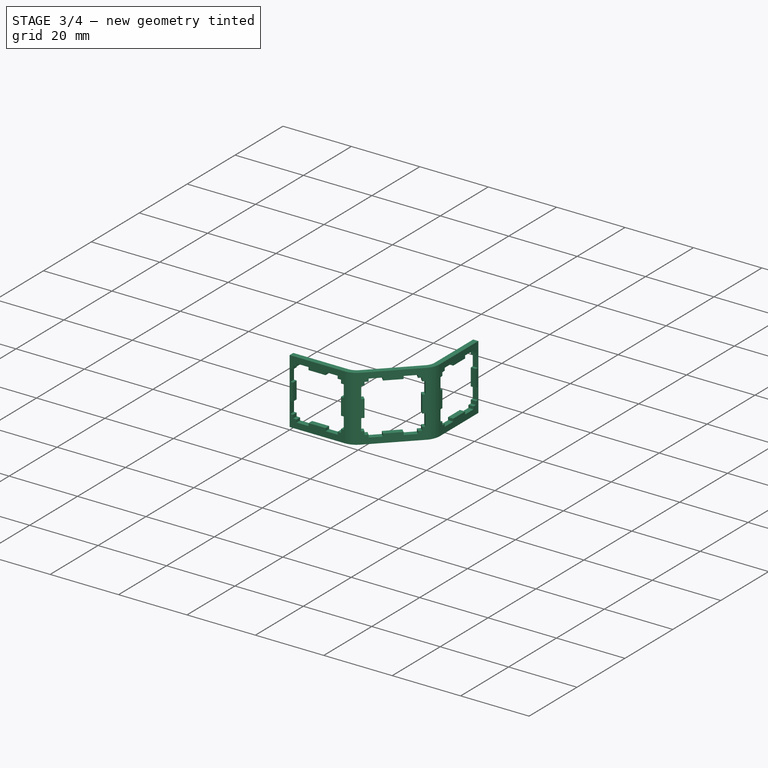
[diagram: stage 3 of 4 — iso view after this stage's code; geometry added in this stage tinted green]
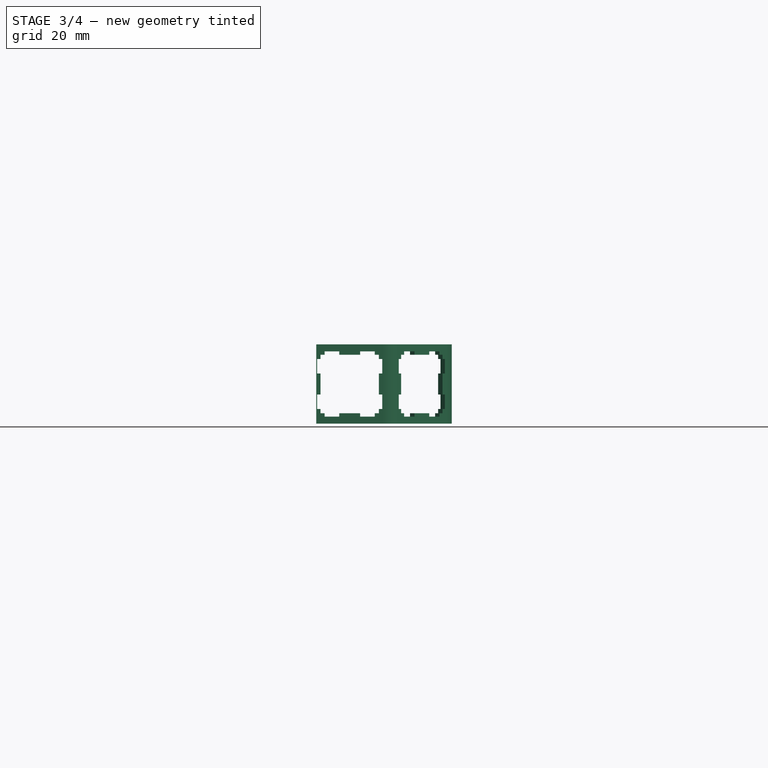
[diagram: stage 3 of 4 — front view after this stage's code; geometry added in this stage tinted green]
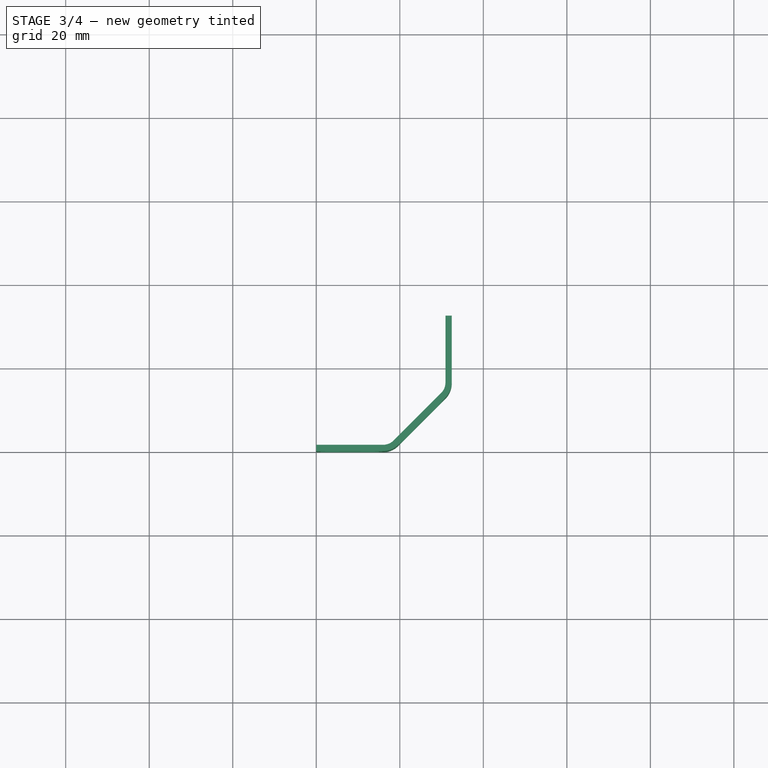
[diagram: stage 3 of 4 — top view after this stage's code; geometry added in this stage tinted green]
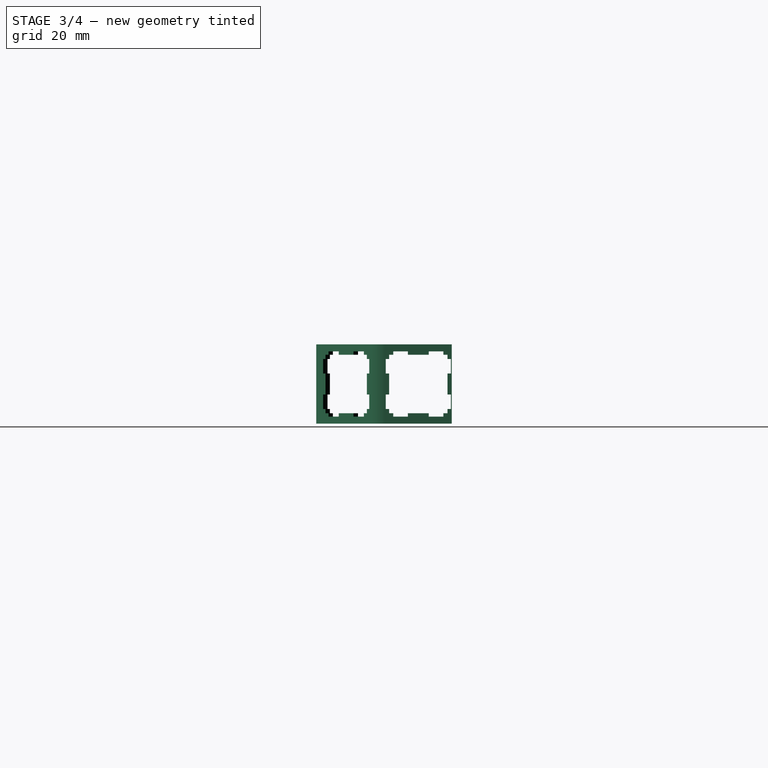
[diagram: stage 3 of 4 — right view after this stage's code; geometry added in this stage tinted green]
FEATURE [Part::FeaturePython] Clone002  label="Clone of Clone of Clone of Pocket003"  # Draft clone (typed FeaturePython)
  Objects = -> [Clone001]
  Placement = pos=(0,4.75,57) rot=(0,0,1;0rad)
  Scale = (1,1,1)
FEATURE [Part::FeaturePython] Clone003  label="Clone of Clone of Clone of Clone of Pocket003"  # Draft clone (typed FeaturePython)
  Objects = -> [Clone002]
  Placement = pos=(0,0,76) rot=(0,0,1;0rad)
  Scale = (1,1,1)
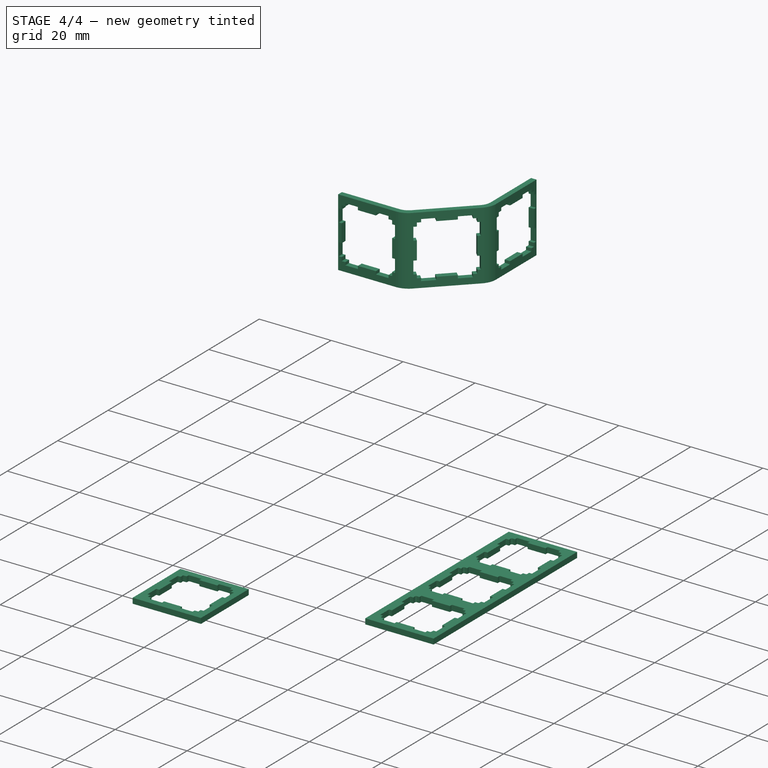
[diagram: stage 4 of 4 — iso view after this stage's code; geometry added in this stage tinted green]
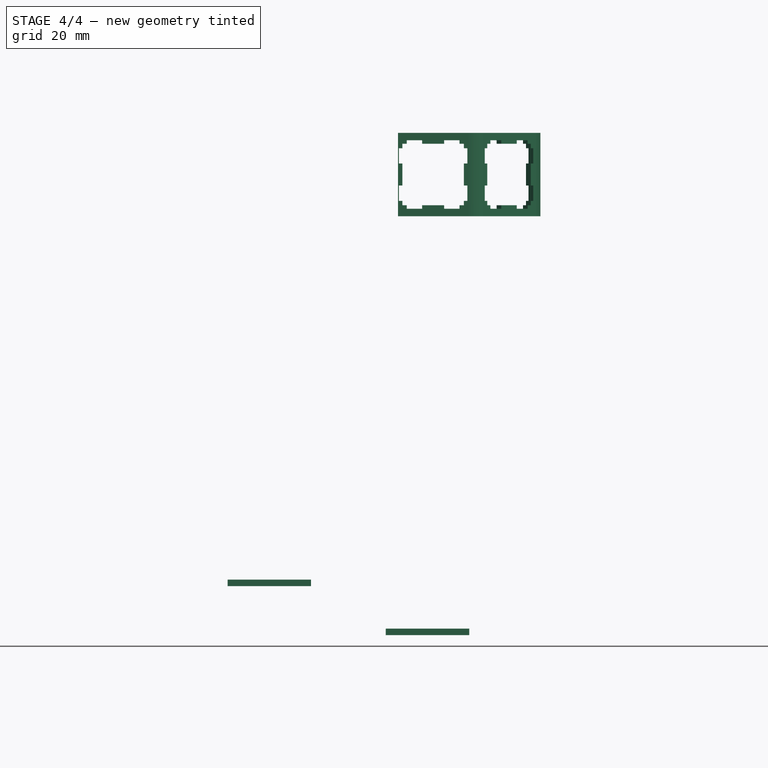
[diagram: stage 4 of 4 — front view after this stage's code; geometry added in this stage tinted green]
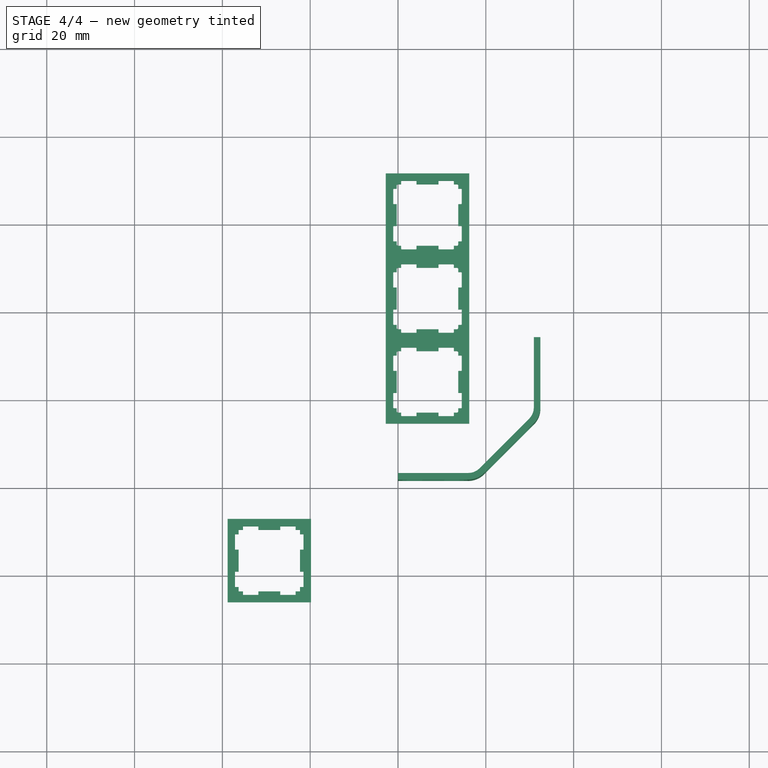
[diagram: stage 4 of 4 — top view after this stage's code; geometry added in this stage tinted green]
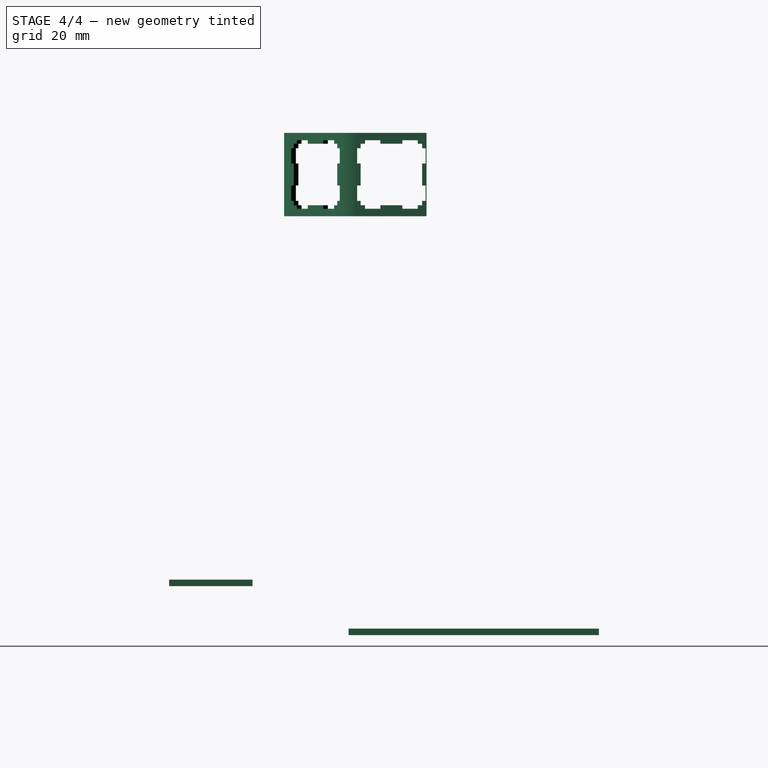
[diagram: stage 4 of 4 — right view after this stage's code; geometry added in this stage tinted green]
FEATURE [Sketcher::SketchObject] Sketch003
  Placement = pos=(-29.3145,-16.694,12.2475) rot=(0,0,1;0rad)
  sketch-geometry (16):
    g0: LineSegment StartX=-6 StartY=7.8 StartZ=0 EndX=-2.5 EndY=7.8 EndZ=0
    g1: LineSegment StartX=-2.5 StartY=7.8 StartZ=0 EndX=-2.5 EndY=-7.8 EndZ=0
    g2: LineSegment StartX=-2.5 StartY=-7.8 StartZ=0 EndX=-6 EndY=-7.8 EndZ=0
    g3: LineSegment StartX=-6 StartY=-7.8 StartZ=0 EndX=-6 EndY=7.8 EndZ=0
    g4: LineSegment StartX=2.5 StartY=7.8 StartZ=0 EndX=6 EndY=7.8 EndZ=0
    g5: LineSegment StartX=6 StartY=7.8 StartZ=0 EndX=6 EndY=-7.8 EndZ=0
    g6: LineSegment StartX=6 StartY=-7.8 StartZ=0 EndX=2.5 EndY=-7.8 EndZ=0
    g7: LineSegment StartX=2.5 StartY=-7.8 StartZ=0 EndX=2.5 EndY=7.8 EndZ=0
    g8: LineSegment StartX=-7.8 StartY=6 StartZ=0 EndX=7.8 EndY=6 EndZ=0
    g9: LineSegment StartX=7.8 StartY=6 StartZ=0 EndX=7.8 EndY=2.5 EndZ=0
    g10: LineSegment StartX=7.8 StartY=2.5 StartZ=0 EndX=-7.8 EndY=2.5 EndZ=0
    g11: LineSegment StartX=-7.8 StartY=2.5 StartZ=0 EndX=-7.8 EndY=6 EndZ=0
    g12: LineSegment StartX=-7.8 StartY=-2.5 StartZ=0 EndX=7.8 EndY=-2.5 EndZ=0
    g13: LineSegment StartX=7.8 StartY=-2.5 StartZ=0 EndX=7.8 EndY=-6 EndZ=0
    g14: LineSegment StartX=7.8 StartY=-6 StartZ=0 EndX=-7.8 EndY=-6 EndZ=0
    g15: LineSegment StartX=-7.8 StartY=-6 StartZ=0 EndX=-7.8 EndY=-2.5 EndZ=0
  constraints (47):
    c: Coincident(g0,g1)
    c: Coincident(g1,g2)
    c: Coincident(g2,g3)
    c: Coincident(g3,g0)
    c: Horizontal(g0)
    c: Horizontal(g2)
    c: Vertical(g1)
    c: Vertical(g3)
    c: Symmetric(g2,g0,g-1)
    c: Distance(g2) = 3.5
    c: Distance(g3) = 15.6
    c: Coincident(g4,g5)
    c: Coincident(g5,g6)
    c: Coincident(g6,g7)
    c: Coincident(g7,g4)
    c: Horizontal(g4)
    c: Horizontal(g6)
    c: Vertical(g5)
    c: Vertical(g7)
    c: Symmetric(g4,g5,g-1)
    c: Equal(g7,g3)
    c: Equal(g6,g2)
    c: Symmetric(g0,g4,g-2)
    c: Distance(g1,g6) = 5
    c: Coincident(g8,g9)
    c: Coincident(g9,g10)
    c: Coincident(g10,g11)
    c: Coincident(g11,g8)
    c: Horizontal(g8)
    c: Horizontal(g10)
    c: Vertical(g9)
    c: Vertical(g11)
    c: Coincident(g12,g13)
    c: Coincident(g13,g14)
    c: Coincident(g14,g15)
    c: Coincident(g15,g12)
    c: Horizontal(g12)
    c: Horizontal(g14)
    c: Vertical(g13)
    c: Vertical(g15)
    c: Equal(g10,g14)
    c: Equal(g14,g3)
    c: Equal(g13,g9)
    c: Equal(g9,g2)
    c: Symmetric(g12,g9,g-1)
    c: Symmetric(g13,g14,g-2)
    c: Distance(g10,g12) = 5
FEATURE [PartDesign::Pocket] Pocket001
  Length = 5
  Placement = pos=(-29.3145,-16.694,10.7475) rot=(0,0,1;0rad)
  Sketch = -> Sketch003
  Type = 1
FEATURE [Part::FeaturePython] Array  # Draft array (typed FeaturePython)
  Angle = 360
  ArrayType = 0
  Axis = (0,0,1)
  Center = (0,0,0)
  IntervalX = (1,0,0)
  IntervalY = (0,19,0)
  IntervalZ = (0,0,1)
  NumberPolar = 0
  NumberX = 1
  NumberY = 3
  NumberZ = 1
  Placement = pos=(11.3917,21.2803,1.89897) rot=(0,0,1;0rad)
FEATURE [Part::FeaturePython] Clone004  label="Clone of Clone of Clone of Clone of Clone of Pocket003"  # Draft clone (typed FeaturePython)
  Objects = -> [Clone003]
  Placement = pos=(0,0,95) rot=(0,0,1;0rad)
  Scale = (1,1,1)
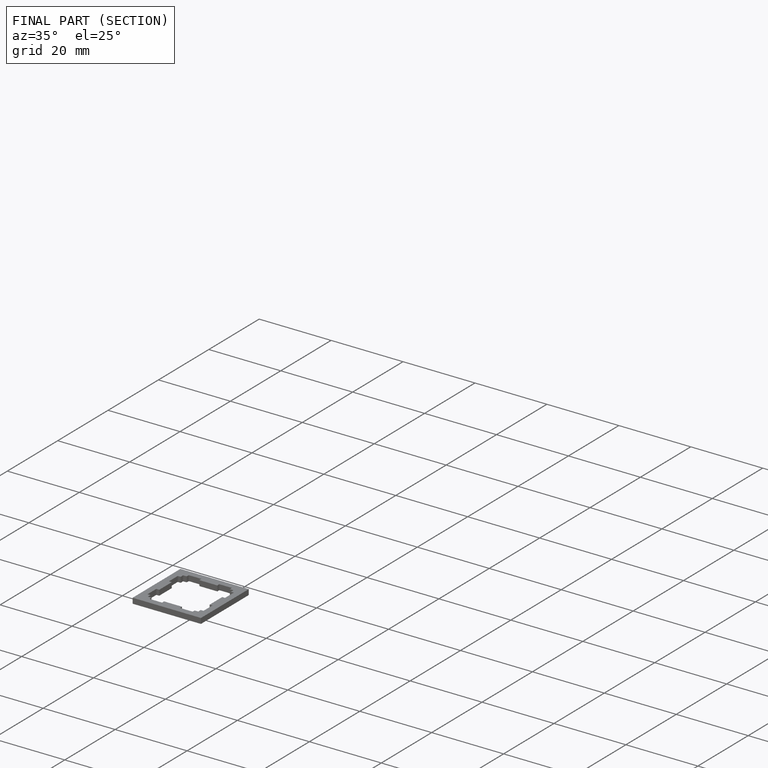
[diagram: finished part — half-section view (interior)]
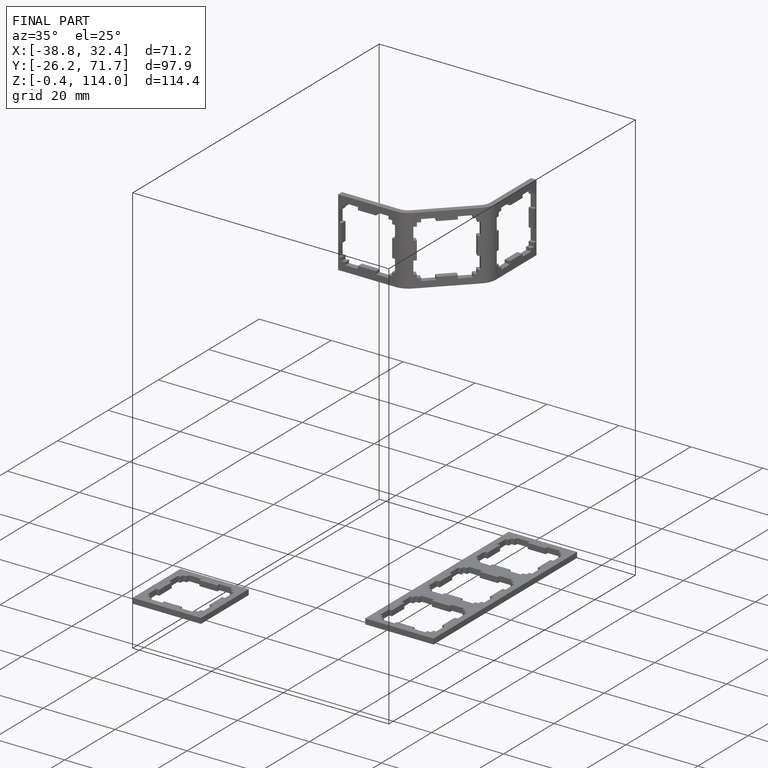
[diagram: finished part — iso view with bounding-box wireframe]
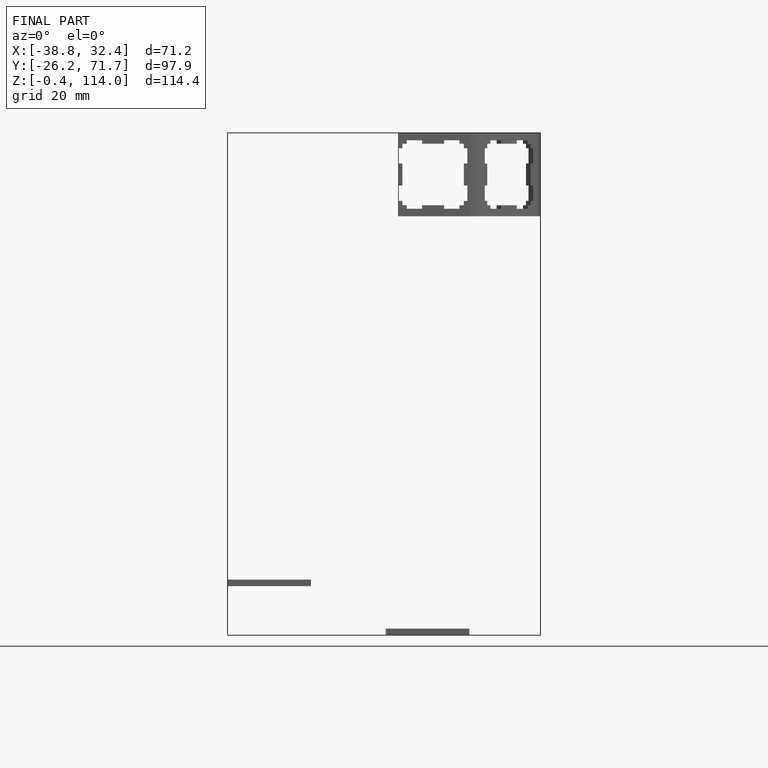
[diagram: finished part — front view with bounding-box wireframe]
